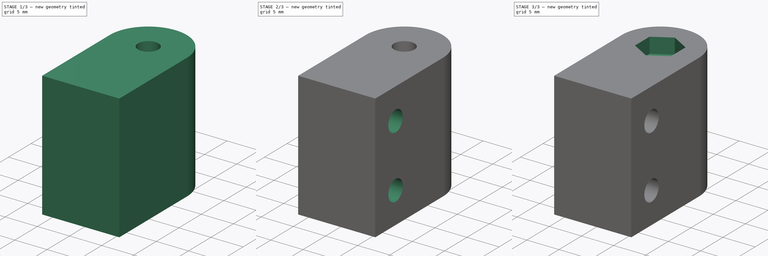
[diagram: build sequence overview — one tinted view per stage of 3, left to right]
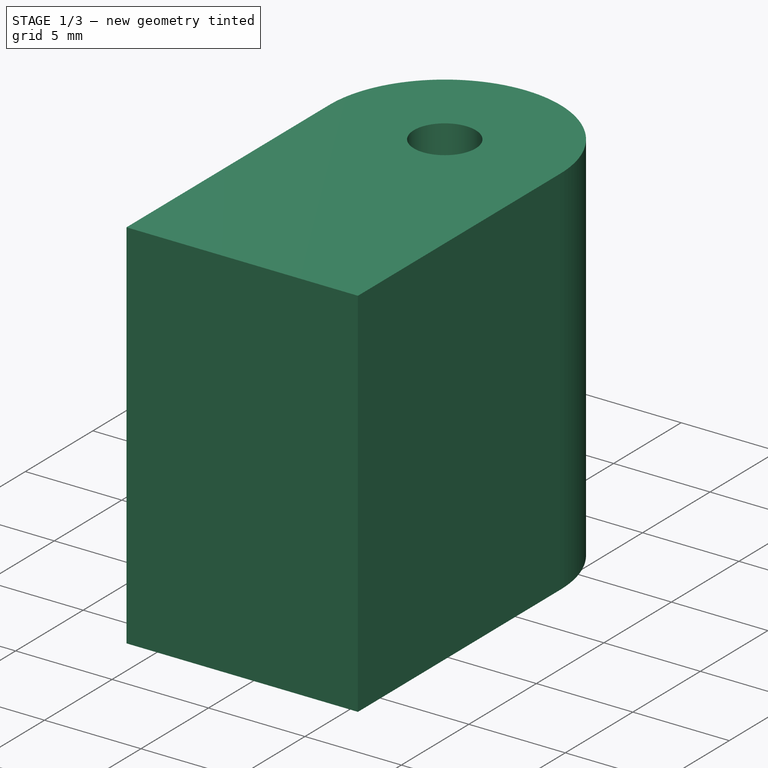
[diagram: stage 1 of 3 — iso view after this stage's code; geometry added in this stage tinted green]
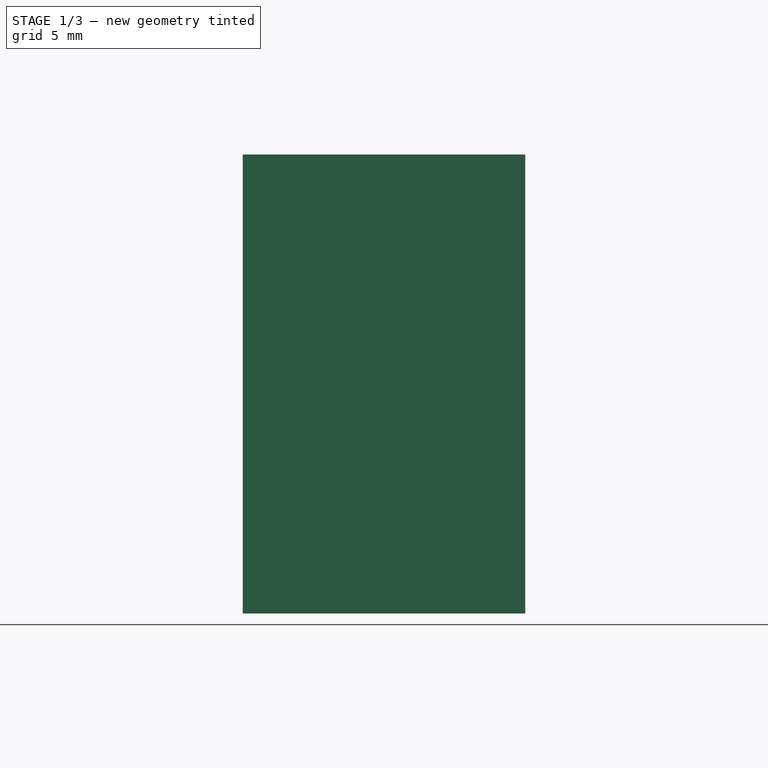
[diagram: stage 1 of 3 — front view after this stage's code; geometry added in this stage tinted green]
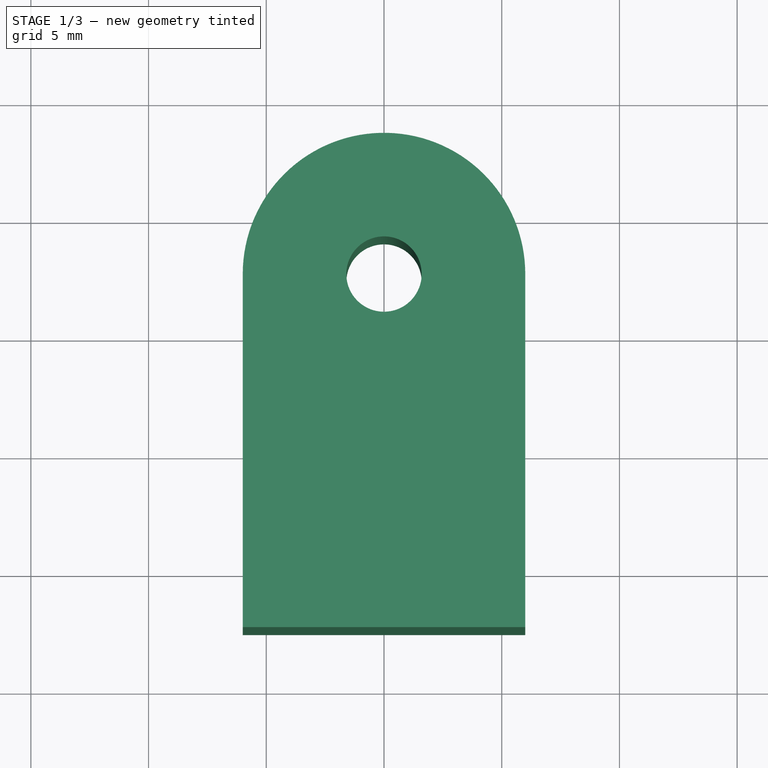
[diagram: stage 1 of 3 — top view after this stage's code; geometry added in this stage tinted green]
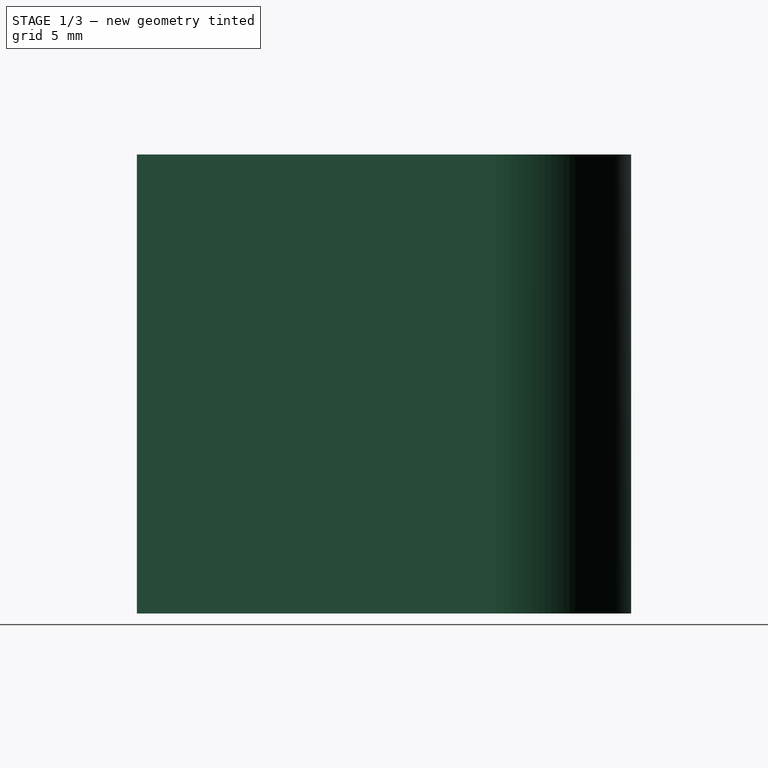
[diagram: stage 1 of 3 — right view after this stage's code; geometry added in this stage tinted green]
FCSTD DOCUMENT  (FreeCAD 0.20R29603 (Git))
Label: pino-suporte-base
License: All rights reserved
LicenseURL: http://en.wikipedia.org/wiki/All_rights_reserved
objects: Sketcher::SketchObject×6, PartDesign::Pocket×5, PartDesign::Pad×1, PartDesign::Body×1
note: 19 computed .brp shape members not serialized (recipe doc carries the construction recipe); baked Part::Feature solids carry a one-line shape summary decoded from their .brp

FEATURE [Sketcher::SketchObject] Sketch
  FullyConstrained = true
  MapMode = 5
  Support = -> [XY_Plane]
  sketch-geometry (4):
    g0: ArcOfCircle CenterX=0 CenterY=7.5 CenterZ=0 NormalX=0 NormalY=0 NormalZ=1 AngleXU=0 Radius=6 StartAngle=0 EndAngle=3.14159
    g1: LineSegment StartX=6 StartY=-7.5 StartZ=0 EndX=6 EndY=7.5 EndZ=0
    g2: LineSegment StartX=-6 StartY=7.5 StartZ=0 EndX=-6 EndY=-7.5 EndZ=0
    g3: LineSegment StartX=-6 StartY=-7.5 StartZ=0 EndX=6 EndY=-7.5 EndZ=0
  constraints (10):
    c: Tangent(g1,g0) = -1.5708
    c: Tangent(g0,g2) = -1.5708
    c: PointOnObject(g0,g-2)
    c: Coincident(g3,g2)
    c: Coincident(g3,g1)
    c: Horizontal(g3)
    c: DistanceX(g3,g3) = 12
    c: Vertical(g1)
    c: Symmetric(g0,g2,g-1)
    c: DistanceY(g2,g2) = 15
FEATURE [PartDesign::Pad] Pad
  Direction = (0,0,1)
  Length = 19.5
  Length2 = 10
  Profile = -> Sketch
  ReferenceAxis = -> Sketch [N_Axis]
  Type = 0
FEATURE [Sketcher::SketchObject] Sketch001
  ExternalGeometry = -> [Pad]
  FullyConstrained = true
  MapMode = 5
  Placement = pos=(0,0,0) rot=(1,0,0;3.14159rad)
  Support = -> [Pad]
  sketch-geometry (1):
    g0: Circle CenterX=0 CenterY=-7.5 CenterZ=0 NormalX=0 NormalY=0 NormalZ=1 AngleXU=0 Radius=1.6
  constraints (2):
    c: Coincident(g0,g-3)
    c: Diameter(g0) = 3.2
FEATURE [PartDesign::Pocket] Pocket
  BaseFeature = -> Pad
  Direction = (0,0,1)
  Length = 5
  Length2 = 5
  Profile = -> Sketch001
  ReferenceAxis = -> Sketch001 [N_Axis]
  Type = 1
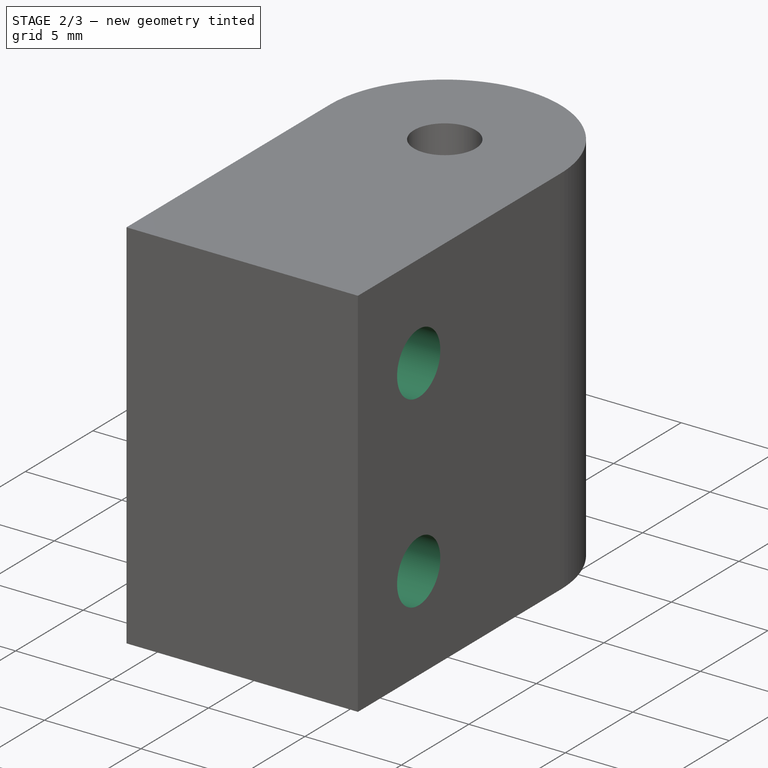
[diagram: stage 2 of 3 — iso view after this stage's code; geometry added in this stage tinted green]
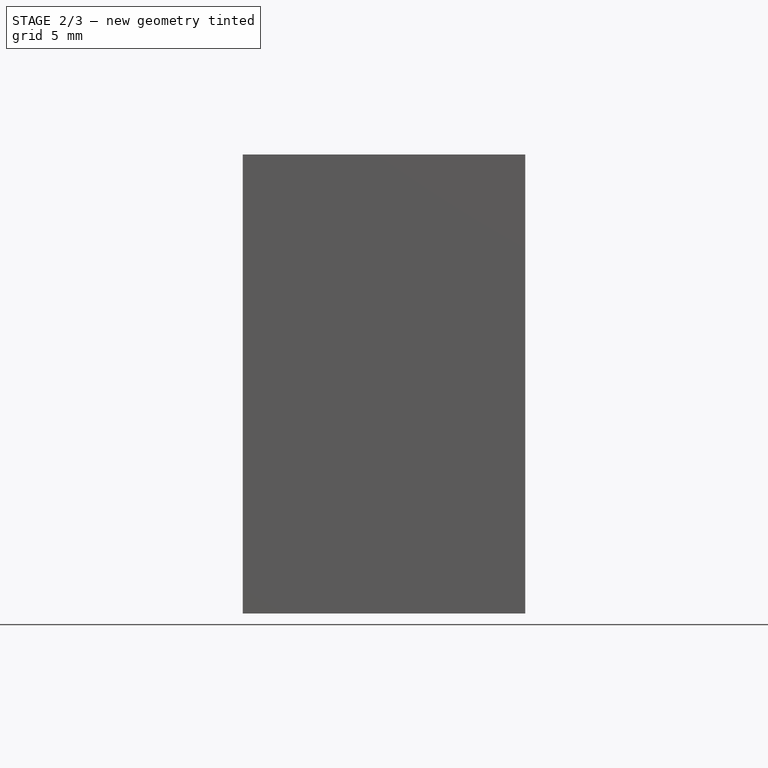
[diagram: stage 2 of 3 — front view after this stage's code; geometry added in this stage tinted green]
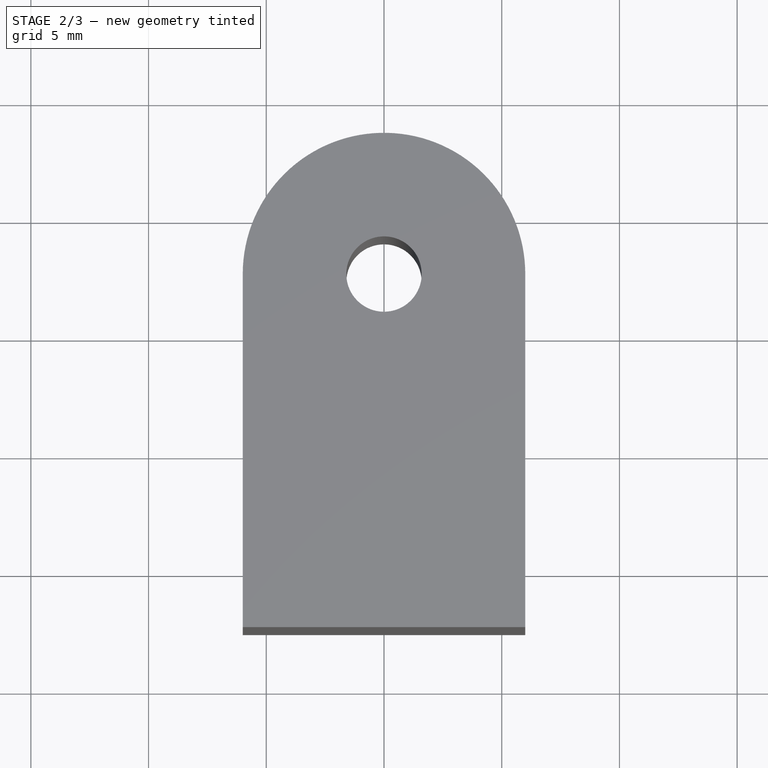
[diagram: stage 2 of 3 — top view after this stage's code; geometry added in this stage tinted green]
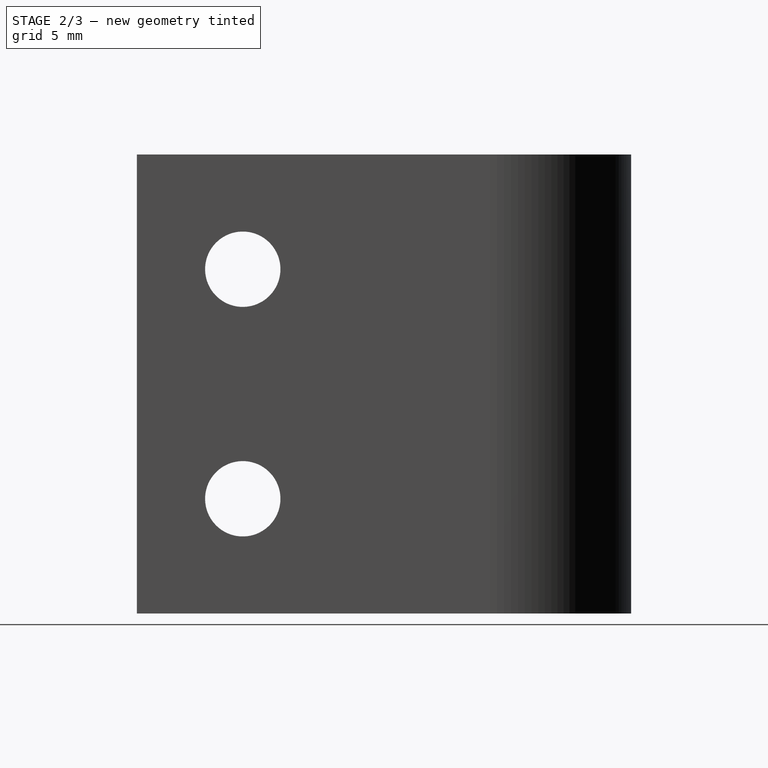
[diagram: stage 2 of 3 — right view after this stage's code; geometry added in this stage tinted green]
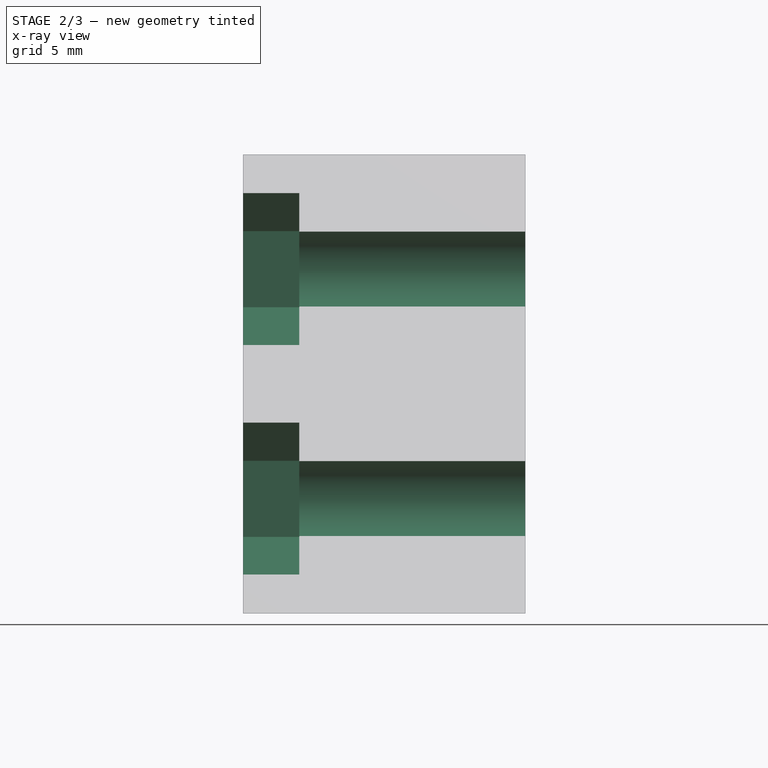
[diagram: stage 2 of 3 — x-ray composite at the front view; earlier geometry ghosted, this stage's added geometry solid]
FEATURE [Sketcher::SketchObject] Sketch002
  ExternalGeometry = -> [Pocket]
  FullyConstrained = true
  MapMode = 5
  Placement = pos=(-6,0,0) rot=(0.57735,-0.57735,-0.57735;2.0944rad)
  Support = -> [Pocket]
  sketch-geometry (10):
    g0: LineSegment StartX=-7.5 StartY=0 StartZ=0 EndX=-1.5 EndY=0 EndZ=0
    g1: LineSegment StartX=-1.5 StartY=0 StartZ=0 EndX=7.5 EndY=0 EndZ=0
    g2: LineSegment StartX=7.5 StartY=0 StartZ=0 EndX=7.5 EndY=19.5 EndZ=0
    g3: LineSegment StartX=7.5 StartY=19.5 StartZ=0 EndX=-1.5 EndY=19.5 EndZ=0
    g4: LineSegment StartX=-1.5 StartY=19.5 StartZ=0 EndX=-1.5 EndY=0 EndZ=0
    g5: LineSegment StartX=3 StartY=14.625 StartZ=0 EndX=3 EndY=4.875 EndZ=0
    g6: LineSegment StartX=-1.5 StartY=9.75 StartZ=0 EndX=7.5 EndY=9.75 EndZ=0
    g7: Circle CenterX=3 CenterY=14.625 CenterZ=0 NormalX=0 NormalY=0 NormalZ=1 AngleXU=0 Radius=1.6
    g8: Circle CenterX=3 CenterY=4.875 CenterZ=0 NormalX=0 NormalY=0 NormalZ=1 AngleXU=0 Radius=1.6
    g9: LineSegment StartX=-1.5 StartY=19.5 StartZ=0 EndX=7.5 EndY=9.75 EndZ=0
  constraints (27):
    c: DistanceX(g-4,g-4) = 6
    c: Coincident(g0,g-4)
    c: Equal(g0,g-4)
    c: PointOnObject(g0,g-1)
    c: Coincident(g1,g2)
    c: Coincident(g2,g3)
    c: Coincident(g3,g4)
    c: Coincident(g4,g1)
    c: Horizontal(g1)
    c: Horizontal(g3)
    c: Vertical(g2)
    c: Vertical(g4)
    c: Coincident(g1,g0)
    c: Horizontal(g-3,g2)
    c: Vertical(g2,g-5)
    c: Symmetric(g3,g0,g6)
    c: PointOnObject(g6,g2)
    c: PointOnObject(g6,g4)
    c: Symmetric(g6,g6,g5)
    c: Symmetric(g5,g5,g6)
    c: Coincident(g7,g5)
    c: Coincident(g8,g5)
    c: Equal(g8,g7)
    c: Diameter(g7) = 3.2
    c: Coincident(g9,g3)
    c: Coincident(g9,g6)
    c: PointOnObject(g7,g9)
FEATURE [PartDesign::Pocket] Pocket001
  BaseFeature = -> Pocket
  Direction = (1,0,0)
  Length = 5
  Length2 = 5
  Profile = -> Sketch002
  ReferenceAxis = -> Sketch002 [N_Axis]
  Type = 1
FEATURE [Sketcher::SketchObject] Sketch003
  ExternalGeometry = -> [Pocket001]
  FullyConstrained = true
  MapMode = 5
  Placement = pos=(-6,0,0) rot=(0.57735,-0.57735,-0.57735;2.0944rad)
  Support = -> [Pocket001]
  sketch-geometry (14):
    g0: LineSegment StartX=3 StartY=17.8582 StartZ=0 EndX=0.2 EndY=16.2416 EndZ=0
    g1: LineSegment StartX=0.2 StartY=16.2416 StartZ=0 EndX=0.2 EndY=13.0084 EndZ=0
    g2: LineSegment StartX=0.2 StartY=13.0084 StartZ=0 EndX=3 EndY=11.3918 EndZ=0
    g3: LineSegment StartX=3 StartY=11.3918 StartZ=0 EndX=5.8 EndY=13.0084 EndZ=0
    g4: LineSegment StartX=5.8 StartY=13.0084 StartZ=0 EndX=5.8 EndY=16.2416 EndZ=0
    g5: LineSegment StartX=5.8 StartY=16.2416 StartZ=0 EndX=3 EndY=17.8582 EndZ=0
    g6: Circle CenterX=3 CenterY=14.625 CenterZ=0 NormalX=0 NormalY=0 NormalZ=1 AngleXU=0 Radius=3.23316
    g7: LineSegment StartX=3 StartY=8.10816 StartZ=0 EndX=0.2 EndY=6.49158 EndZ=0
    g8: LineSegment StartX=0.2 StartY=6.49158 StartZ=0 EndX=0.2 EndY=3.25842 EndZ=0
    g9: LineSegment StartX=0.2 StartY=3.25842 StartZ=0 EndX=3 EndY=1.64184 EndZ=0
    g10: LineSegment StartX=3 StartY=1.64184 StartZ=0 EndX=5.8 EndY=3.25842 EndZ=0
    g11: LineSegment StartX=5.8 StartY=3.25842 StartZ=0 EndX=5.8 EndY=6.49158 EndZ=0
    g12: LineSegment StartX=5.8 StartY=6.49158 StartZ=0 EndX=3 EndY=8.10816 EndZ=0
    g13: Circle CenterX=3 CenterY=4.875 CenterZ=0 NormalX=0 NormalY=0 NormalZ=1 AngleXU=0 Radius=3.23316
  constraints (32):
    c: Coincident(g0,g1)
    c: Coincident(g1,g2)
    c: Coincident(g2,g3)
    c: Coincident(g3,g4)
    c: Coincident(g4,g5)
    c: Coincident(g5,g0)
    c: Equal(g0, g1-g5) x5
    c: PointOnObject(g0,g6)
    c: PointOnObject(g1,g6)
    c: PointOnObject(g2,g6)
    c: PointOnObject(g3,g6)
    c: PointOnObject(g4,g6)
    c: PointOnObject(g5,g6)
    c: Coincident(g6,g-3)
    c: Coincident(g7,g8)
    c: Coincident(g8,g9)
    c: Coincident(g9,g10)
    c: Coincident(g10,g11)
    c: Coincident(g11,g12)
    c: Coincident(g12,g7)
    c: Equal(g7, g8-g12) x5
    c: PointOnObject(g7,g13)
    c: PointOnObject(g8,g13)
    c: PointOnObject(g9,g13)
    c: PointOnObject(g10,g13)
    c: PointOnObject(g11,g13)
    c: PointOnObject(g12,g13)
    c: Coincident(g13,g-4)
    c: Vertical(g8)
    c: Vertical(g1)
    c: Equal(g6,g13)
    c: DistanceX(g0,g4) = 5.6
FEATURE [PartDesign::Pocket] Pocket002
  BaseFeature = -> Pocket001
  Direction = (1,0,0)
  Length = 2.4
  Length2 = 5
  Profile = -> Sketch003
  ReferenceAxis = -> Sketch003 [N_Axis]
  Type = 0
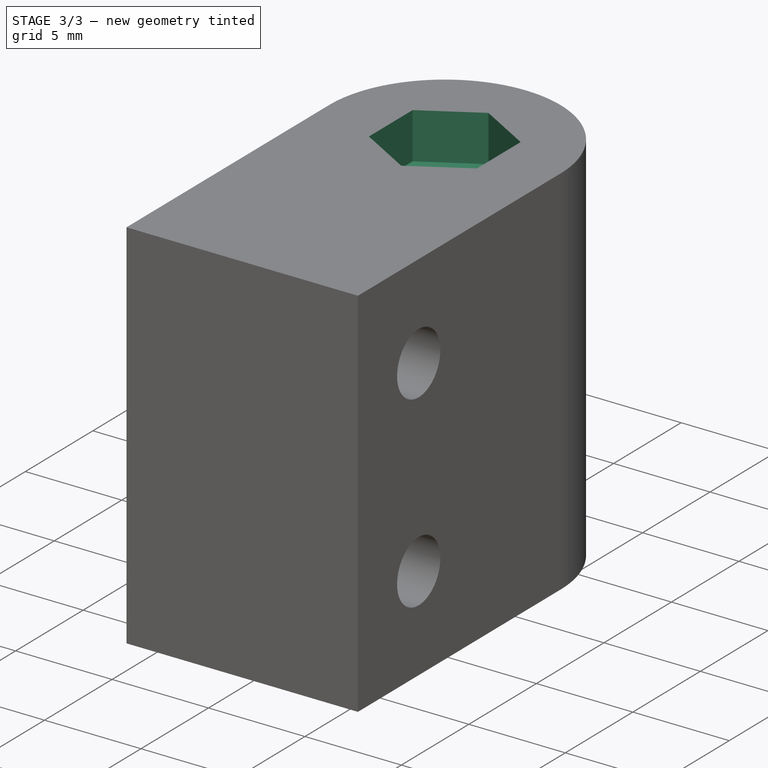
[diagram: stage 3 of 3 — iso view after this stage's code; geometry added in this stage tinted green]
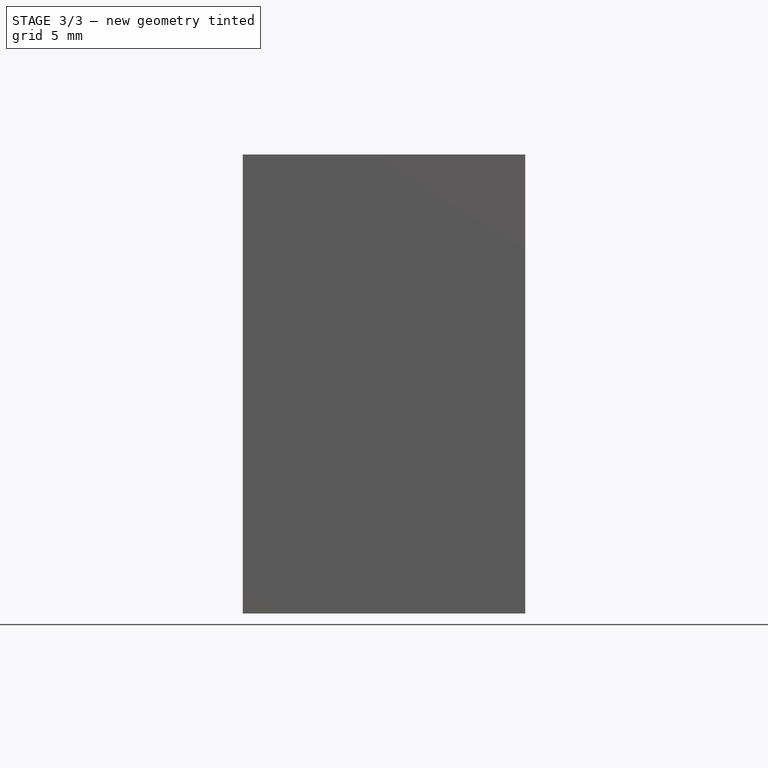
[diagram: stage 3 of 3 — front view after this stage's code; geometry added in this stage tinted green]
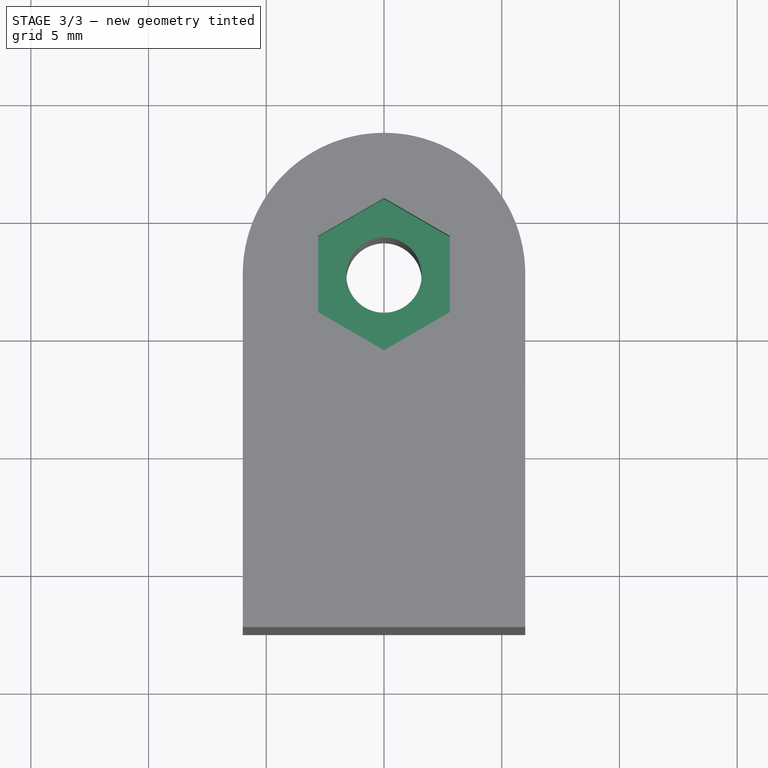
[diagram: stage 3 of 3 — top view after this stage's code; geometry added in this stage tinted green]
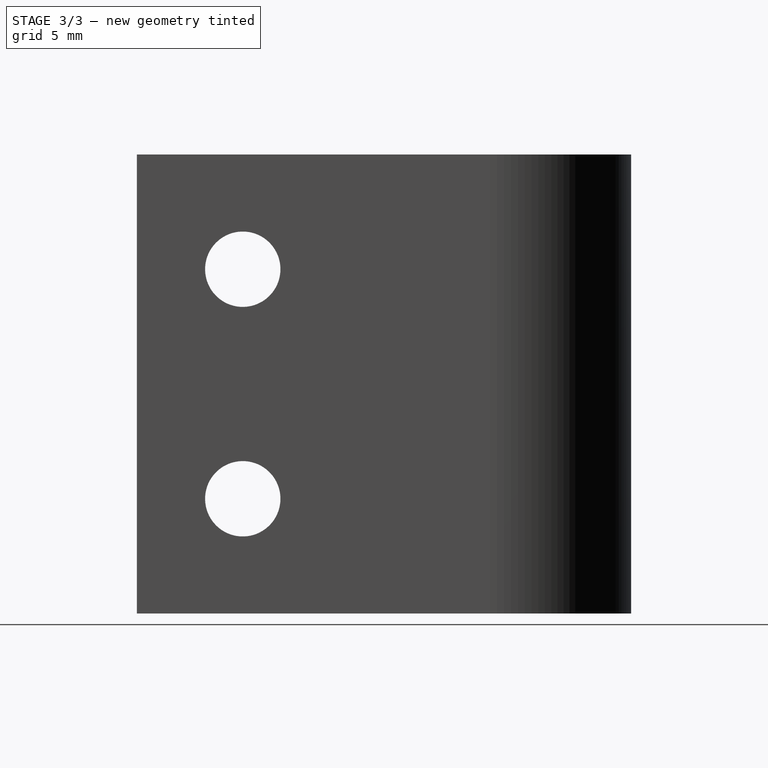
[diagram: stage 3 of 3 — right view after this stage's code; geometry added in this stage tinted green]
FEATURE [Sketcher::SketchObject] Sketch004
  ExternalGeometry = -> [Pocket002]
  FullyConstrained = true
  MapMode = 5
  Placement = pos=(0,0,0) rot=(1,0,0;3.14159rad)
  Support = -> [Pocket002]
  sketch-geometry (7):
    g0: LineSegment StartX=2.8 StartY=-9.11658 StartZ=0 EndX=2.8 EndY=-5.88342 EndZ=0
    g1: LineSegment StartX=2.8 StartY=-5.88342 StartZ=0 EndX=-4.3503e-12 EndY=-4.26684 EndZ=0
    g2: LineSegment StartX=-4.3503e-12 StartY=-4.26684 StartZ=0 EndX=-2.8 EndY=-5.88342 EndZ=0
    g3: LineSegment StartX=-2.8 StartY=-5.88342 StartZ=0 EndX=-2.8 EndY=-9.11658 EndZ=0
    g4: LineSegment StartX=-2.8 StartY=-9.11658 StartZ=0 EndX=-1.1453e-12 EndY=-10.7332 EndZ=0
    g5: LineSegment StartX=-1.1453e-12 StartY=-10.7332 StartZ=0 EndX=2.8 EndY=-9.11658 EndZ=0
    g6: Circle CenterX=0 CenterY=-7.5 CenterZ=0 NormalX=0 NormalY=0 NormalZ=1 AngleXU=0 Radius=3.23316
  constraints (16):
    c: Coincident(g0,g1)
    c: Coincident(g1,g2)
    c: Coincident(g2,g3)
    c: Coincident(g3,g4)
    c: Coincident(g4,g5)
    c: Coincident(g5,g0)
    c: Equal(g0, g1-g5) x5
    c: PointOnObject(g0,g6)
    c: PointOnObject(g1,g6)
    c: PointOnObject(g2,g6)
    c: PointOnObject(g3,g6)
    c: PointOnObject(g4,g6)
    c: PointOnObject(g5,g6)
    c: Coincident(g6,g-3)
    c: Vertical(g3)
    c: DistanceX(g2,g0) = 5.6
FEATURE [PartDesign::Pocket] Pocket003
  BaseFeature = -> Pocket002
  Direction = (0,0,1)
  Length = 2.4
  Length2 = 5
  Profile = -> Sketch004
  ReferenceAxis = -> Sketch004 [N_Axis]
  Type = 0
FEATURE [Sketcher::SketchObject] Sketch005
  ExternalGeometry = -> [Pocket003]
  FullyConstrained = true
  MapMode = 5
  Placement = pos=(0,0,19.5) rot=(0,0,1;0rad)
  Support = -> [Pocket003]
  sketch-geometry (7):
    g0: LineSegment StartX=2.8 StartY=9.11658 StartZ=0 EndX=-1.1453e-12 EndY=10.7332 EndZ=0
    g1: LineSegment StartX=-1.1453e-12 StartY=10.7332 StartZ=0 EndX=-2.8 EndY=9.11658 EndZ=0
    g2: LineSegment StartX=-2.8 StartY=9.11658 StartZ=0 EndX=-2.8 EndY=5.88342 EndZ=0
    g3: LineSegment StartX=-2.8 StartY=5.88342 StartZ=0 EndX=3.85407e-11 EndY=4.26684 EndZ=0
    g4: LineSegment StartX=3.85407e-11 StartY=4.26684 StartZ=0 EndX=2.8 EndY=5.88342 EndZ=0
    g5: LineSegment StartX=2.8 StartY=5.88342 StartZ=0 EndX=2.8 EndY=9.11658 EndZ=0
    g6: Circle CenterX=1.86279e-11 CenterY=7.5 CenterZ=0 NormalX=0 NormalY=0 NormalZ=1 AngleXU=0 Radius=3.23316
  constraints (15):
    c: Coincident(g0,g1)
    c: Coincident(g1,g2)
    c: Coincident(g2,g3)
    c: Coincident(g3,g4)
    c: Coincident(g4,g5)
    c: Coincident(g5,g0)
    c: Equal(g0, g1-g5) x5
    c: PointOnObject(g0,g6)
    c: PointOnObject(g1,g6)
    c: PointOnObject(g2,g6)
    c: PointOnObject(g3,g6)
    c: PointOnObject(g4,g6)
    c: PointOnObject(g5,g6)
    c: Coincident(g0,g-4)
    c: Coincident(g1,g-4)
FEATURE [PartDesign::Pocket] Pocket004
  BaseFeature = -> Pocket003
  Direction = (0,0,-1)
  Length = 2.4
  Length2 = 5
  Profile = -> Sketch005
  ReferenceAxis = -> Sketch005 [N_Axis]
  Type = 0
FEATURE [PartDesign::Body] Body
  Group = -> [Sketch,Pad,Sketch001,Pocket,Sketch002,Pocket001,Sketch003,Pocket002,Sketch004,Pocket003,Sketch005,Pocket004]
  Origin = -> Origin
  Tip = -> Pocket004
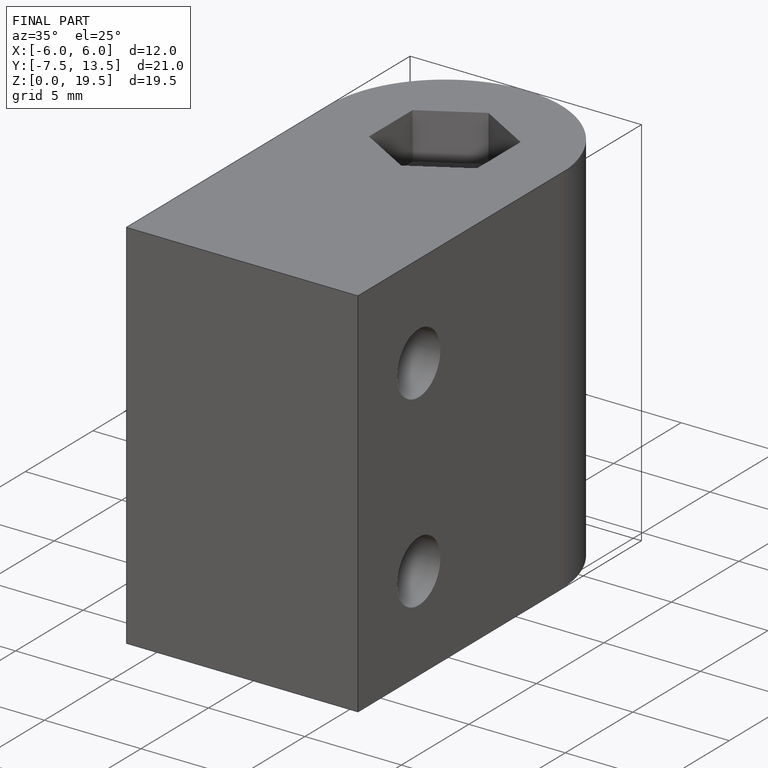
[diagram: finished part — iso view with bounding-box wireframe]
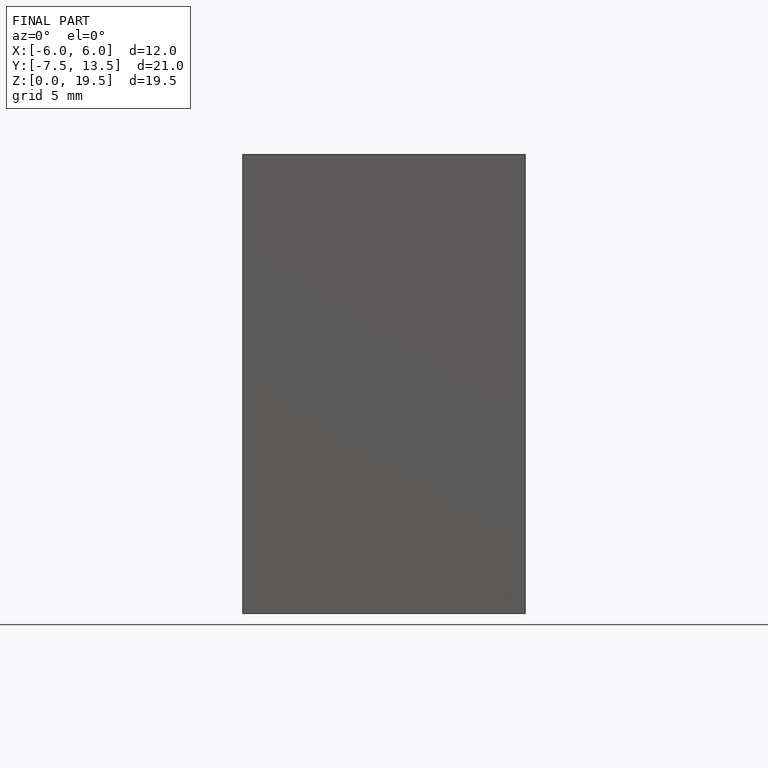
[diagram: finished part — front view with bounding-box wireframe]
